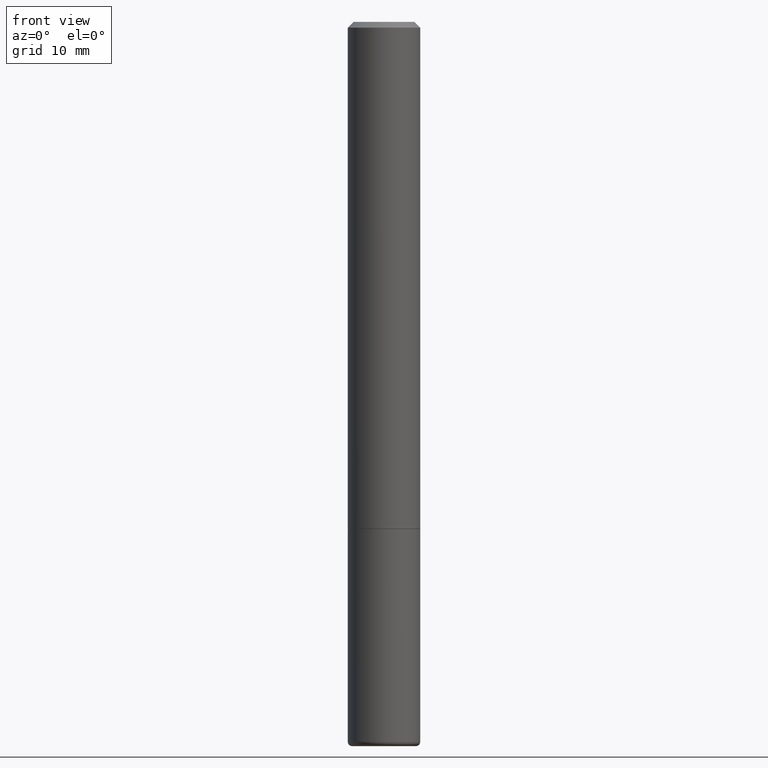
[diagram: clean part render]
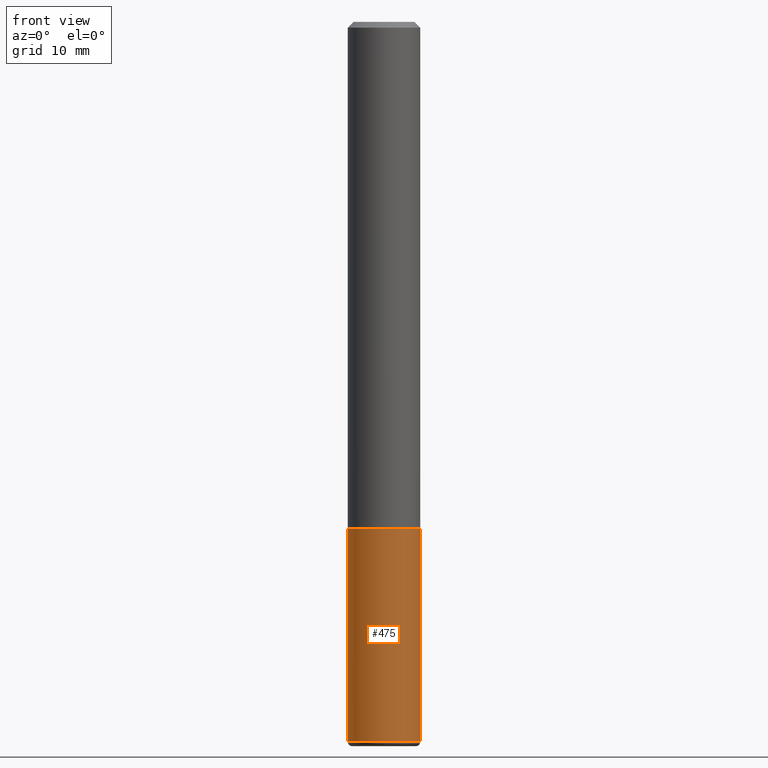
[diagram: same view with one face highlighted and labeled with its STEP entity id]
A machine part, front view. The second image highlights one B-rep face of the part: STEP entity #475.
In plain terms, the highlighted cylindrical surface (edge-blend (fillet) strip) has radius 3.175 mm, axis along (-0, 0, 1).
Its self-contained STEP definition (entity closure, byte-faithful):
#8 = DIRECTION ( 'NONE',  ( 1.000000000000000000, -6.982962677686267499E-15, 4.876176775795935793E-29 ) ) ;
#22 = ORIENTED_EDGE ( 'NONE', *, *, #83, .T. ) ;
#24 = EDGE_LOOP ( 'NONE', ( #373, #127, #22, #165 ) ) ;
#42 = AXIS2_PLACEMENT_3D ( 'NONE', #164, #237, #306 ) ;
#63 = EDGE_CURVE ( 'NONE', #473, #440, #180, .T. ) ;
#83 = EDGE_CURVE ( 'NONE', #362, #420, #471, .T. ) ;
#87 = DIRECTION ( 'NONE',  ( -2.445468806185136597E-29, 3.491481338843145583E-15, 1.000000000000000000 ) ) ;
#92 = DIRECTION ( 'NONE',  ( -2.445468806185136597E-29, 3.491481338843145583E-15, 1.000000000000000000 ) ) ;
#126 = AXIS2_PLACEMENT_3D ( 'NONE', #312, #87, #277 ) ;
#127 = ORIENTED_EDGE ( 'NONE', *, *, #467, .T. ) ;
#129 = CARTESIAN_POINT ( 'NONE',  ( 0.1250000000000000278, -6.982962677686288799E-15, -1.750000000000000222 ) ) ;
#164 = CARTESIAN_POINT ( 'NONE',  ( 6.076991380109446545E-29, -8.676333121198880578E-15, -2.485000571154037718 ) ) ;
#165 = ORIENTED_EDGE ( 'NONE', *, *, #482, .F. ) ;
#174 = CARTESIAN_POINT ( 'NONE',  ( 0.1250000000000000278, -8.728703347107836346E-16, 6.095220969744921142E-30 ) ) ;
#180 = LINE ( 'NONE', #391, #265 ) ;
#209 = CIRCLE ( 'NONE', #42, 0.1250000000000000278 ) ;
#216 = DIRECTION ( 'NONE',  ( -2.445468806185136877E-29, 3.491481338843145188E-15, 1.000000000000000000 ) ) ;
#237 = DIRECTION ( 'NONE',  ( -2.445468806185136597E-29, 3.491481338843145583E-15, 1.000000000000000000 ) ) ;
#265 = VECTOR ( 'NONE', #216, 39.37007874015748143 ) ;
#267 = AXIS2_PLACEMENT_3D ( 'NONE', #416, #92, #8 ) ;
#277 = DIRECTION ( 'NONE',  ( 1.000000000000000000, -6.982962677686269077E-15, 0.000000000000000000 ) ) ;
#306 = DIRECTION ( 'NONE',  ( 1.000000000000000000, -6.982962677686269077E-15, 0.000000000000000000 ) ) ;
#307 = VECTOR ( 'NONE', #463, 39.37007874015748143 ) ;
#312 = CARTESIAN_POINT ( 'NONE',  ( 4.279570410823989044E-29, -6.110092342975505460E-15, -1.750000000000000222 ) ) ;
#322 = CIRCLE ( 'NONE', #126, 0.1250000000000000278 ) ;
#340 = CARTESIAN_POINT ( 'NONE',  ( -0.1250000000000000278, -6.505034312387068576E-15, -2.485000571154037718 ) ) ;
#362 = VERTEX_POINT ( 'NONE', #407 ) ;
#372 = CYLINDRICAL_SURFACE ( 'NONE', #267, 0.1250000000000000278 ) ;
#373 = ORIENTED_EDGE ( 'NONE', *, *, #63, .F. ) ;
#391 = CARTESIAN_POINT ( 'NONE',  ( -0.1250000000000000278, 8.881784197001254296E-16, -6.148668862818634329E-30 ) ) ;
#407 = CARTESIAN_POINT ( 'NONE',  ( 0.1250000000000000278, -9.549203455909665495E-15, -2.485000571154037718 ) ) ;
#416 = CARTESIAN_POINT ( 'NONE',  ( 0.000000000000000000, 0.000000000000000000, 0.000000000000000000 ) ) ;
#420 = VERTEX_POINT ( 'NONE', #129 ) ;
#440 = VERTEX_POINT ( 'NONE', #459 ) ;
#459 = CARTESIAN_POINT ( 'NONE',  ( -0.1250000000000000278, -6.505034312387068576E-15, -1.750000000000000222 ) ) ;
#461 = FACE_OUTER_BOUND ( 'NONE', #24, .T. ) ;
#463 = DIRECTION ( 'NONE',  ( -2.445468806185136877E-29, 3.491481338843145188E-15, 1.000000000000000000 ) ) ;
#467 = EDGE_CURVE ( 'NONE', #473, #362, #209, .T. ) ;
#471 = LINE ( 'NONE', #174, #307 ) ;
#473 = VERTEX_POINT ( 'NONE', #340 ) ;
#475 = ADVANCED_FACE ( 'NONE', ( #461 ), #372, .T. ) ;
#482 = EDGE_CURVE ( 'NONE', #440, #420, #322, .T. ) ;